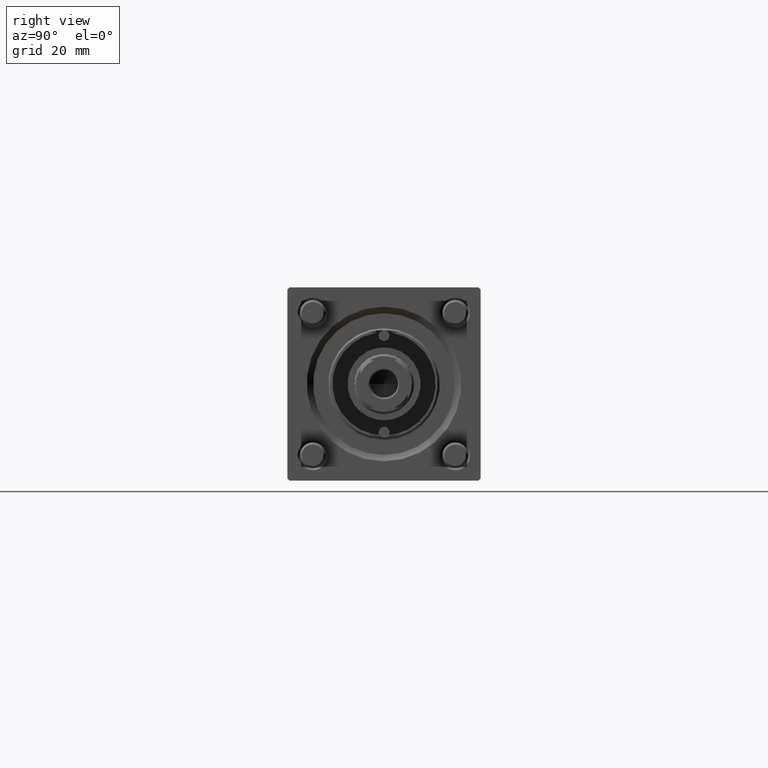
[diagram: clean part render]
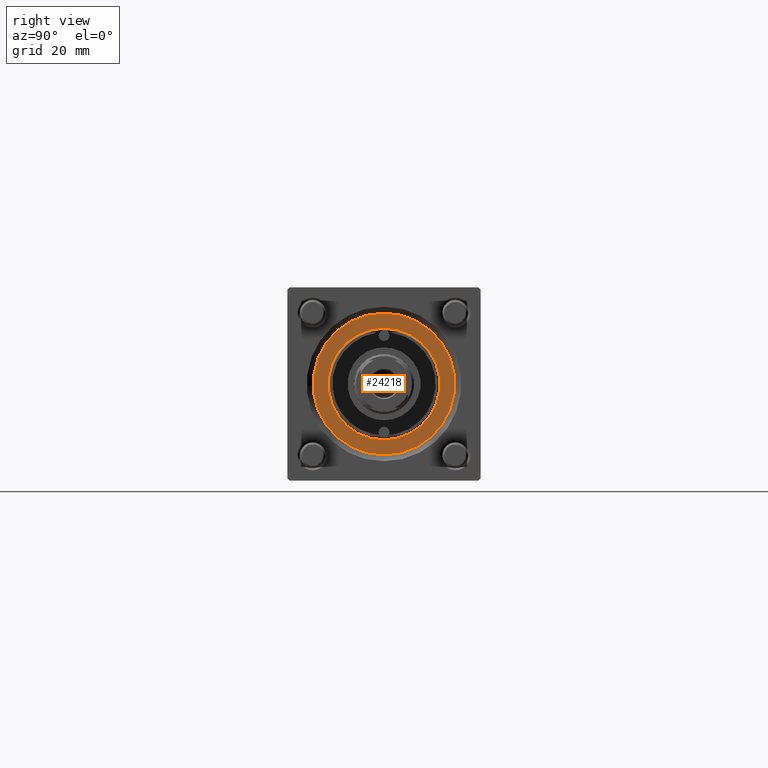
[diagram: same view with one face highlighted and labeled with its STEP entity id]
A machine part, right view. The second image highlights one B-rep face of the part: STEP entity #24218.
In plain terms, the highlighted planar face has unit normal (1, 0, 0).
Its self-contained STEP definition (entity closure, byte-faithful):
#68 = EDGE_CURVE ( 'NONE', #19365, #50665, #4645, .T. ) ;
#375 = EDGE_LOOP ( 'NONE', ( #39245, #28600 ) ) ;
#500 = DIRECTION ( 'NONE',  ( 0.000000000000000000, 0.000000000000000000, 1.000000000000000000 ) ) ;
#538 = DIRECTION ( 'NONE',  ( 0.000000000000000000, 0.000000000000000000, 1.000000000000000000 ) ) ;
#2630 = DIRECTION ( 'NONE',  ( 1.000000000000000000, 0.000000000000000000, 0.000000000000000000 ) ) ;
#2752 = DIRECTION ( 'NONE',  ( 1.000000000000000000, 0.000000000000000000, 0.000000000000000000 ) ) ;
#3652 = AXIS2_PLACEMENT_3D ( 'NONE', #33430, #29693, #2630 ) ;
#4645 = CIRCLE ( 'NONE', #45105, 13.00000000000000178 ) ;
#12642 = CARTESIAN_POINT ( 'NONE',  ( 0.000000000000000000, 0.000000000000000000, 28.69999999999999929 ) ) ;
#13725 = CARTESIAN_POINT ( 'NONE',  ( 0.000000000000000000, 0.000000000000000000, 28.69999999999999929 ) ) ;
#14294 = DIRECTION ( 'NONE',  ( 1.000000000000000000, 0.000000000000000000, 0.000000000000000000 ) ) ;
#15380 = EDGE_CURVE ( 'NONE', #24163, #28845, #34021, .T. ) ;
#18064 = CARTESIAN_POINT ( 'NONE',  ( 13.00000000000000178, 1.592040838891559293E-15, 28.69999999999999929 ) ) ;
#19365 = VERTEX_POINT ( 'NONE', #18064 ) ;
#22753 = CIRCLE ( 'NONE', #55866, 16.50000000000000000 ) ;
#24163 = VERTEX_POINT ( 'NONE', #47496 ) ;
#24218 = ADVANCED_FACE ( 'NONE', ( #44025, #51528 ), #40551, .T. ) ;
#24278 = EDGE_LOOP ( 'NONE', ( #53538, #28795 ) ) ;
#24933 = AXIS2_PLACEMENT_3D ( 'NONE', #35654, #538, #49180 ) ;
#28452 = CIRCLE ( 'NONE', #3652, 13.00000000000000178 ) ;
#28600 = ORIENTED_EDGE ( 'NONE', *, *, #15380, .T. ) ;
#28795 = ORIENTED_EDGE ( 'NONE', *, *, #68, .F. ) ;
#28845 = VERTEX_POINT ( 'NONE', #42666 ) ;
#29654 = DIRECTION ( 'NONE',  ( 0.000000000000000000, 0.000000000000000000, 1.000000000000000000 ) ) ;
#29693 = DIRECTION ( 'NONE',  ( 0.000000000000000000, 0.000000000000000000, 1.000000000000000000 ) ) ;
#33430 = CARTESIAN_POINT ( 'NONE',  ( 0.000000000000000000, 0.000000000000000000, 28.69999999999999929 ) ) ;
#34021 = CIRCLE ( 'NONE', #40437, 16.50000000000000000 ) ;
#35654 = CARTESIAN_POINT ( 'NONE',  ( 0.000000000000000000, 0.000000000000000000, 28.69999999999999929 ) ) ;
#39245 = ORIENTED_EDGE ( 'NONE', *, *, #39543, .T. ) ;
#39543 = EDGE_CURVE ( 'NONE', #28845, #24163, #22753, .T. ) ;
#40437 = AXIS2_PLACEMENT_3D ( 'NONE', #56314, #47101, #2752 ) ;
#40551 = PLANE ( 'NONE',  #24933 ) ;
#42666 = CARTESIAN_POINT ( 'NONE',  ( -16.50000000000000000, 0.000000000000000000, 28.69999999999999929 ) ) ;
#44025 = FACE_BOUND ( 'NONE', #24278, .T. ) ;
#45105 = AXIS2_PLACEMENT_3D ( 'NONE', #13725, #500, #14294 ) ;
#47101 = DIRECTION ( 'NONE',  ( 0.000000000000000000, 0.000000000000000000, 1.000000000000000000 ) ) ;
#47496 = CARTESIAN_POINT ( 'NONE',  ( 16.50000000000000000, 2.020667218593133100E-15, 28.69999999999999929 ) ) ;
#47780 = DIRECTION ( 'NONE',  ( 1.000000000000000000, 0.000000000000000000, 0.000000000000000000 ) ) ;
#48922 = CARTESIAN_POINT ( 'NONE',  ( -13.00000000000000178, 0.000000000000000000, 28.69999999999999929 ) ) ;
#49180 = DIRECTION ( 'NONE',  ( 1.000000000000000000, 0.000000000000000000, -0.000000000000000000 ) ) ;
#50665 = VERTEX_POINT ( 'NONE', #48922 ) ;
#51453 = EDGE_CURVE ( 'NONE', #50665, #19365, #28452, .T. ) ;
#51528 = FACE_OUTER_BOUND ( 'NONE', #375, .T. ) ;
#53538 = ORIENTED_EDGE ( 'NONE', *, *, #51453, .F. ) ;
#55866 = AXIS2_PLACEMENT_3D ( 'NONE', #12642, #29654, #47780 ) ;
#56314 = CARTESIAN_POINT ( 'NONE',  ( 0.000000000000000000, 0.000000000000000000, 28.69999999999999929 ) ) ;